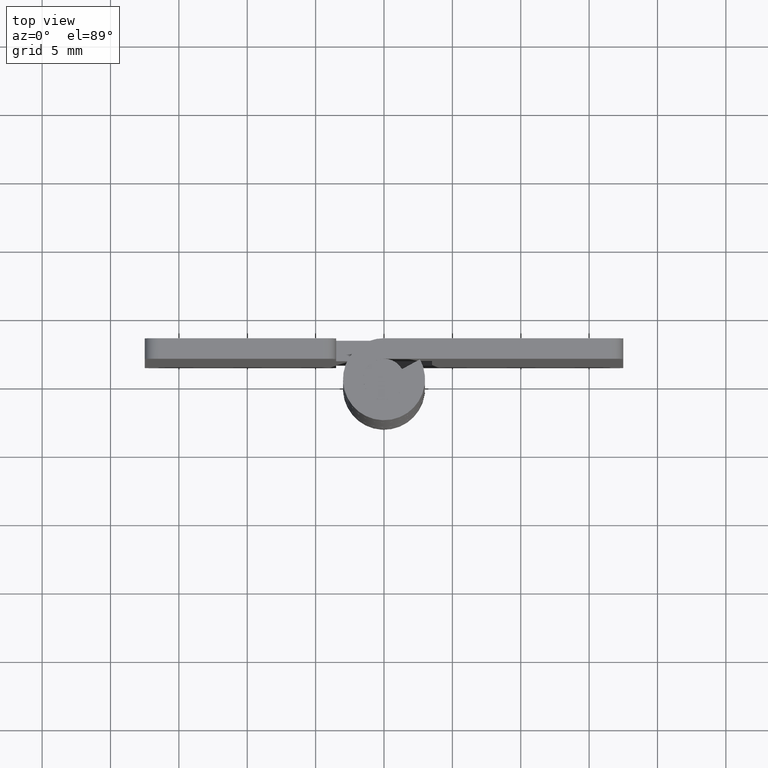
[diagram: clean part render]
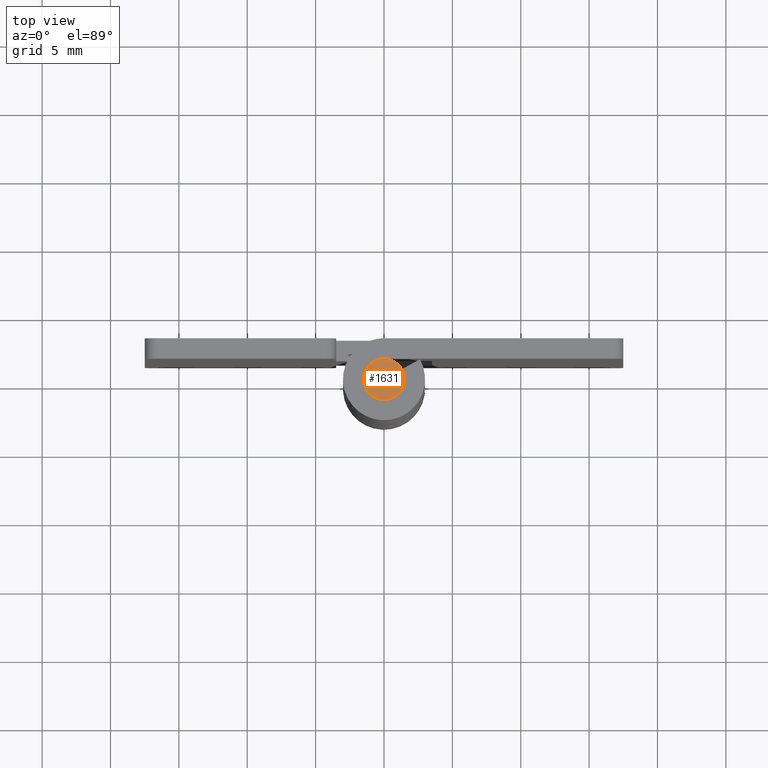
[diagram: same view with one face highlighted and labeled with its STEP entity id]
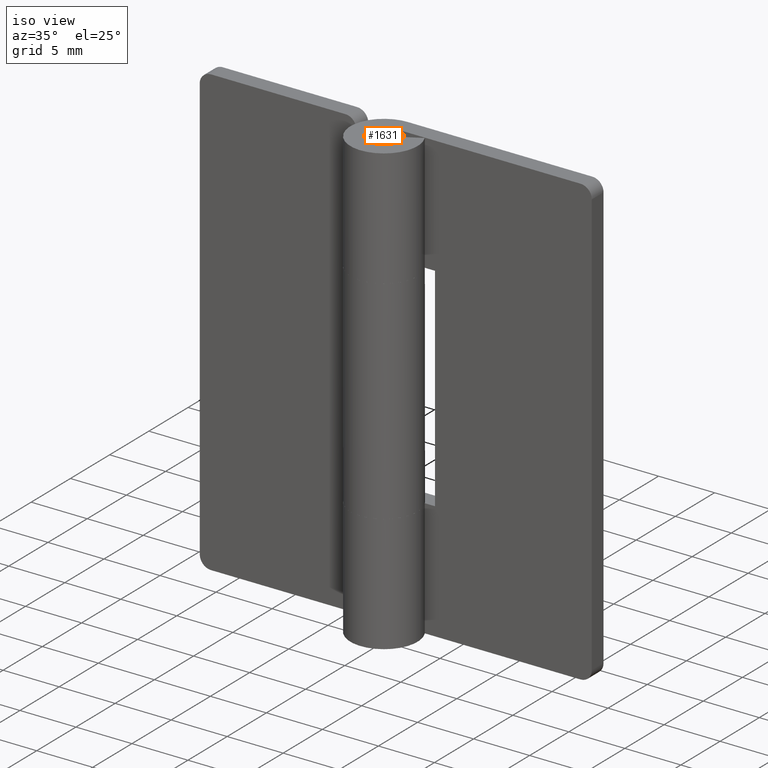
[diagram: same view with one face highlighted and labeled with its STEP entity id]
A machine part, top view. The second image highlights one B-rep face of the part: STEP entity #1631.
A second angle (iso view) of the same face is appended — the face is thin or edge-on in the first view.
In plain terms, the highlighted face is a freeform B-spline surface patch.
Its self-contained STEP definition (entity closure, byte-faithful):
#1459=CARTESIAN_POINT('',(0.177048615914858,-1.489514614763830,40.0));
#1460=VERTEX_POINT('',#1459);
#1466=CARTESIAN_POINT('',(-1.500000000000000,0.0,40.0));
#1467=VERTEX_POINT('',#1466);
#1468=CARTESIAN_POINT('',(0.177048615914858,-1.489514614763830,40.0));
#1469=CARTESIAN_POINT('',(0.088834796980410,-1.500000000000000,40.000000000000007));
#1470=CARTESIAN_POINT('',(0.0,-1.500000000000000,40.0));
#1471=CARTESIAN_POINT('',(-1.500000000000000,-1.500000000000000,39.999999999999993));
#1472=CARTESIAN_POINT('',(-1.500000000000000,0.0,40.0));
#1480=(BOUNDED_CURVE()B_SPLINE_CURVE(2,(#1468,#1469,#1470,#1471,#1472),.UNSPECIFIED.,.F.,.U.)B_SPLINE_CURVE_WITH_KNOTS((3,2,3),(0.229562783955644,0.250000000000000,0.500000000000000),.UNSPECIFIED.)CURVE()GEOMETRIC_REPRESENTATION_ITEM()RATIONAL_B_SPLINE_CURVE((0.956027362663894,0.976056312036731,1.0,0.707106781186548,1.0))REPRESENTATION_ITEM(''));
#1481=EDGE_CURVE('',#1460,#1467,#1480,.T.);
#1483=CARTESIAN_POINT('',(-0.091572809322919,1.497202197631538,40.0));
#1484=VERTEX_POINT('',#1483);
#1485=CARTESIAN_POINT('',(-1.500000000000000,0.0,40.0));
#1486=CARTESIAN_POINT('',(-1.500000000000000,1.411059100319583,39.999999999999993));
#1487=CARTESIAN_POINT('',(-0.091572809322919,1.497202197631539,40.000000000000007));
#1495=(BOUNDED_CURVE()B_SPLINE_CURVE(2,(#1485,#1486,#1487),.UNSPECIFIED.,.F.,.U.)B_SPLINE_CURVE_WITH_KNOTS((3,3),(0.500000000000000,0.739332962237213),.UNSPECIFIED.)CURVE()GEOMETRIC_REPRESENTATION_ITEM()RATIONAL_B_SPLINE_CURVE((1.0,0.719603993288737,0.976072041663010))REPRESENTATION_ITEM(''));
#1496=EDGE_CURVE('',#1467,#1484,#1495,.T.);
#1574=CARTESIAN_POINT('',(1.500000000000000,0.0,40.0));
#1575=VERTEX_POINT('',#1574);
#1576=CARTESIAN_POINT('',(-0.091572809322919,1.497202197631538,40.000000000000007));
#1577=CARTESIAN_POINT('',(-0.045829144968575,1.500000000000000,39.999999999999993));
#1578=CARTESIAN_POINT('',(0.0,1.500000000000000,40.0));
#1579=CARTESIAN_POINT('',(1.500000000000000,1.500000000000000,39.999999999999993));
#1580=CARTESIAN_POINT('',(1.500000000000000,0.0,40.0));
#1588=(BOUNDED_CURVE()B_SPLINE_CURVE(2,(#1576,#1577,#1578,#1579,#1580),.UNSPECIFIED.,.F.,.U.)B_SPLINE_CURVE_WITH_KNOTS((3,2,3),(0.739332962237212,0.750000000000000,1.0),.UNSPECIFIED.)CURVE()GEOMETRIC_REPRESENTATION_ITEM()RATIONAL_B_SPLINE_CURVE((0.976072041663009,0.987502787897810,1.0,0.707106781186548,1.0))REPRESENTATION_ITEM(''));
#1589=EDGE_CURVE('',#1484,#1575,#1588,.T.);
#1591=CARTESIAN_POINT('',(1.500000000000000,0.0,40.0));
#1592=CARTESIAN_POINT('',(1.500000000000000,-1.332264253371262,40.000000000000007));
#1593=CARTESIAN_POINT('',(0.177048615914858,-1.489514614763830,40.0));
#1601=(BOUNDED_CURVE()B_SPLINE_CURVE(2,(#1591,#1592,#1593),.UNSPECIFIED.,.F.,.U.)B_SPLINE_CURVE_WITH_KNOTS((3,3),(0.0,0.229562783955644),.UNSPECIFIED.)CURVE()GEOMETRIC_REPRESENTATION_ITEM()RATIONAL_B_SPLINE_CURVE((1.0,0.731050469149817,0.956027362663894))REPRESENTATION_ITEM(''));
#1602=EDGE_CURVE('',#1575,#1460,#1601,.T.);
#1620=CARTESIAN_POINT('',(-1.649849994185418,-1.649822796803121,40.0));
#1621=CARTESIAN_POINT('',(1.649850074651688,-1.649822796803121,40.0));
#1622=CARTESIAN_POINT('',(-1.649849994185418,1.649813489537839,40.0));
#1623=CARTESIAN_POINT('',(1.649850074651688,1.649813489537839,40.0));
#1624=B_SPLINE_SURFACE_WITH_KNOTS('',1,1,((#1620,#1622),(#1621,#1623)),.UNSPECIFIED.,.F.,.F.,.U.,(2,2),(2,2),(0.0,3.299700068837106),(0.0,3.299636286340959),.UNSPECIFIED.);
#1625=ORIENTED_EDGE('',*,*,#1589,.F.);
#1626=ORIENTED_EDGE('',*,*,#1496,.F.);
#1627=ORIENTED_EDGE('',*,*,#1481,.F.);
#1628=ORIENTED_EDGE('',*,*,#1602,.F.);
#1629=EDGE_LOOP('',(#1625,#1626,#1627,#1628));
#1630=FACE_OUTER_BOUND('',#1629,.T.);
#1631=ADVANCED_FACE('',(#1630),#1624,.T.);